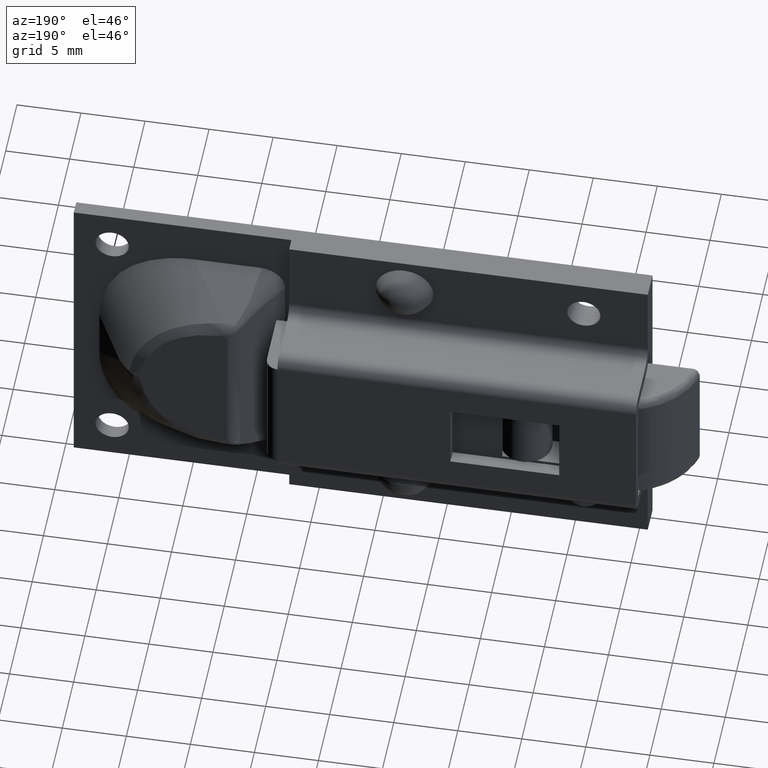
[diagram: clean part render]
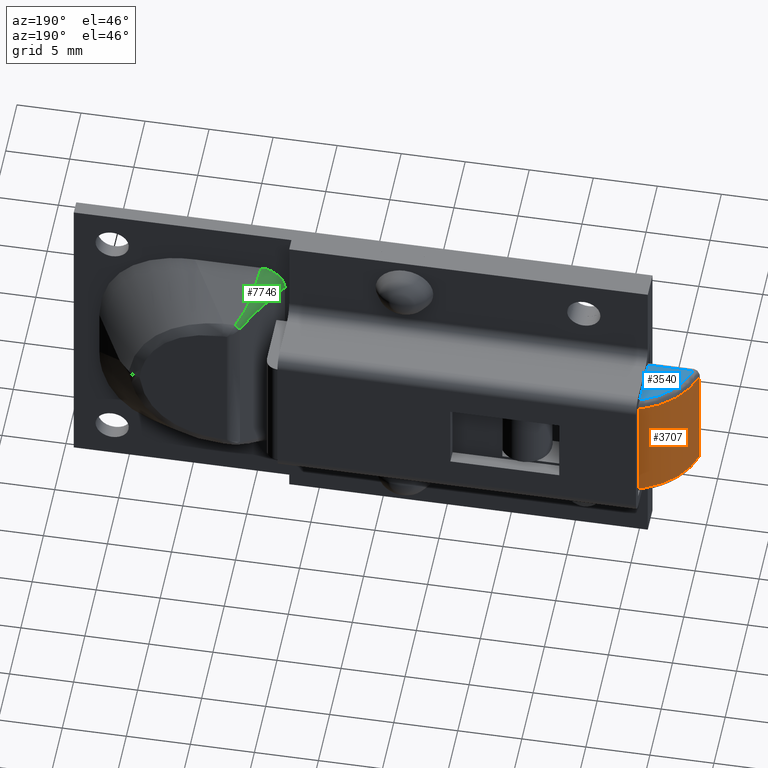
[diagram: same view with three faces highlighted in distinct colors, each labeled with its STEP entity id]
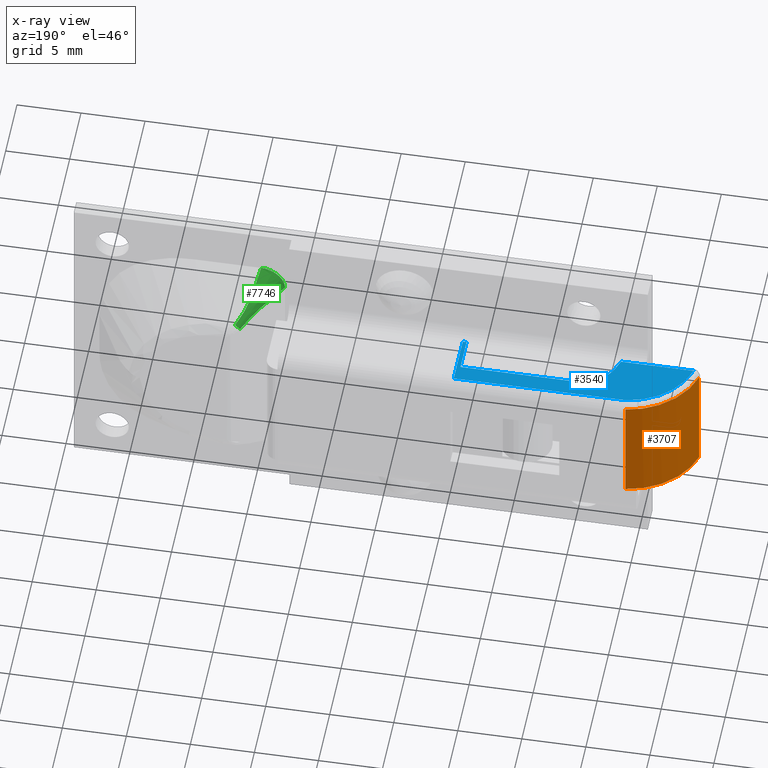
[diagram: x-ray of the same camera — body ghosted, the three highlighted faces saturated]
A machine part, auxiliary view with three faces highlighted in distinct colors.
The next image is the same camera in x-ray (body ghosted, the three faces saturated) — at least one of them is partly hidden behind the body in this view.
Their STEP definitions:

[orange] entity #3707 — the highlighted face is a freeform B-spline surface patch.
#2156=CARTESIAN_POINT('',(-9.800035537852411,6.099994000000000,4.400000000000071));
#2157=VERTEX_POINT('',#2156);
#2215=CARTESIAN_POINT('',(-14.782426649906419,1.731408727272845,4.400000000000000));
#2216=VERTEX_POINT('',#2215);
#2246=CARTESIAN_POINT('',(-14.782426649906419,1.731408727272845,4.400000000000000));
#2247=CARTESIAN_POINT('',(-13.737964009039684,5.565706747075051,4.400000000000001));
#2248=CARTESIAN_POINT('',(-9.800035537852411,6.099994000000000,4.400000000000071));
#2256=(BOUNDED_CURVE()B_SPLINE_CURVE(2,(#2246,#2247,#2248),.UNSPECIFIED.,.F.,.U.)CURVE()GEOMETRIC_REPRESENTATION_ITEM()QUASI_UNIFORM_CURVE()RATIONAL_B_SPLINE_CURVE((1.0,0.833713419659948,1.0))REPRESENTATION_ITEM(''));
#2257=EDGE_CURVE('',#2216,#2157,#2256,.T.);
#2877=CARTESIAN_POINT('',(-14.782426649906419,1.731408727272845,-4.400000000000000));
#2878=VERTEX_POINT('',#2877);
#2973=CARTESIAN_POINT('',(-9.800035537852411,6.099994000000000,-4.400000000000071));
#2974=VERTEX_POINT('',#2973);
#3016=CARTESIAN_POINT('',(-9.800035537852411,6.099994000000000,-4.400000000000071));
#3017=CARTESIAN_POINT('',(-13.737964009039681,5.565706747075052,-4.400000000000000));
#3018=CARTESIAN_POINT('',(-14.782426649906419,1.731408727272845,-4.400000000000000));
#3026=(BOUNDED_CURVE()B_SPLINE_CURVE(2,(#3016,#3017,#3018),.UNSPECIFIED.,.F.,.U.)CURVE()GEOMETRIC_REPRESENTATION_ITEM()QUASI_UNIFORM_CURVE()RATIONAL_B_SPLINE_CURVE((1.0,0.833713419659947,1.0))REPRESENTATION_ITEM(''));
#3027=EDGE_CURVE('',#2974,#2878,#3026,.T.);
#3165=CARTESIAN_POINT('',(-14.782426649906419,1.731408727272845,-4.400000000000000));
#3166=CARTESIAN_POINT('',(-14.782426649906419,1.731408727272845,4.400000000000000));
#3167=QUASI_UNIFORM_CURVE('',1,(#3165,#3166),.UNSPECIFIED.,.F.,.U.);
#3168=EDGE_CURVE('',#2878,#2216,#3167,.T.);
#3672=CARTESIAN_POINT('',(-9.800035537852411,6.099994000000000,-4.400000000000071));
#3673=CARTESIAN_POINT('',(-9.800035537852411,6.099994000000000,4.400000000000071));
#3674=QUASI_UNIFORM_CURVE('',1,(#3672,#3673),.UNSPECIFIED.,.F.,.U.);
#3675=EDGE_CURVE('',#2974,#2157,#3674,.T.);
#3687=CARTESIAN_POINT('',(-14.844874531668390,1.481047358633379,-4.620000000000074));
#3688=CARTESIAN_POINT('',(-14.844874531668390,1.481047358633379,4.625500000000074));
#3689=CARTESIAN_POINT('',(-13.869489104044755,5.783450407811901,-4.620000000000074));
#3690=CARTESIAN_POINT('',(-13.869489104044755,5.783450407811901,4.625500000000074));
#3691=CARTESIAN_POINT('',(-9.471965258399941,6.135349195798488,-4.620000000000073));
#3692=CARTESIAN_POINT('',(-9.471965258399941,6.135349195798488,4.625500000000075));
#3700=(BOUNDED_SURFACE()B_SPLINE_SURFACE(1,2,((#3687,#3689,#3691),(#3688,#3690,#3692)),.UNSPECIFIED.,.F.,.F.,.U.)B_SPLINE_SURFACE_WITH_KNOTS((2,2),(3,3),(0.0,9.245500000000149),(0.0,7.873523508983878),.UNSPECIFIED.)GEOMETRIC_REPRESENTATION_ITEM()RATIONAL_B_SPLINE_SURFACE(((1.0,0.802558081884726,0.992307679395612),(1.0,0.802558081884726,0.992307679395612)))REPRESENTATION_ITEM('')SURFACE());
#3701=ORIENTED_EDGE('',*,*,#3675,.F.);
#3702=ORIENTED_EDGE('',*,*,#3027,.T.);
#3703=ORIENTED_EDGE('',*,*,#3168,.T.);
#3704=ORIENTED_EDGE('',*,*,#2257,.T.);
#3705=EDGE_LOOP('',(#3701,#3702,#3703,#3704));
#3706=FACE_OUTER_BOUND('',#3705,.T.);
#3707=ADVANCED_FACE('',(#3706),#3700,.T.);

[blue] entity #3540 — the highlighted face is a freeform B-spline surface patch.
#2139=CARTESIAN_POINT('',(3.699996999999860,5.599994000000000,4.900000000000000));
#2140=VERTEX_POINT('',#2139);
#2163=CARTESIAN_POINT('',(-9.765533048192269,5.599994000000000,4.900000000000000));
#2164=VERTEX_POINT('',#2163);
#2190=CARTESIAN_POINT('',(3.699996999999860,5.599994000000000,4.900000000000000));
#2191=CARTESIAN_POINT('',(-9.765533048192269,5.599994000000000,4.900000000000000));
#2192=QUASI_UNIFORM_CURVE('',1,(#2190,#2191),.UNSPECIFIED.,.F.,.U.);
#2193=EDGE_CURVE('',#2140,#2164,#2192,.T.);
#2217=CARTESIAN_POINT('',(-14.300004679080899,1.599997000000115,4.900000000000000));
#2218=VERTEX_POINT('',#2217);
#2232=CARTESIAN_POINT('',(-9.765533048192269,5.599994000000007,4.900000000000000));
#2233=CARTESIAN_POINT('',(-13.348813570879514,5.091888466413374,4.900000000000000));
#2234=CARTESIAN_POINT('',(-14.300004679080940,1.599997000000128,4.900000000000000));
#2242=(BOUNDED_CURVE()B_SPLINE_CURVE(2,(#2232,#2233,#2234),.UNSPECIFIED.,.F.,.U.)CURVE()GEOMETRIC_REPRESENTATION_ITEM()QUASI_UNIFORM_CURVE()RATIONAL_B_SPLINE_CURVE((1.0,0.835367940058848,1.0))REPRESENTATION_ITEM(''));
#2243=EDGE_CURVE('',#2164,#2218,#2242,.T.);
#2276=CARTESIAN_POINT('',(3.699996999999860,1.599997000000115,4.900000000000000));
#2277=VERTEX_POINT('',#2276);
#2299=CARTESIAN_POINT('',(3.699996999999860,1.599997000000115,4.900000000000000));
#2300=CARTESIAN_POINT('',(3.699996999999860,5.599994000000000,4.900000000000000));
#2301=QUASI_UNIFORM_CURVE('',1,(#2299,#2300),.UNSPECIFIED.,.F.,.U.);
#2302=EDGE_CURVE('',#2277,#2140,#2301,.T.);
#2379=CARTESIAN_POINT('',(3.399996999999860,1.599997000000115,4.900000000000000));
#2380=VERTEX_POINT('',#2379);
#2402=CARTESIAN_POINT('',(3.399996999999860,1.599997000000115,4.900000000000000));
#2403=CARTESIAN_POINT('',(3.699996999999860,1.599997000000115,4.900000000000000));
#2404=QUASI_UNIFORM_CURVE('',1,(#2402,#2403),.UNSPECIFIED.,.F.,.U.);
#2405=EDGE_CURVE('',#2380,#2277,#2404,.T.);
#2426=CARTESIAN_POINT('',(-8.648009576877920,1.599997000000115,4.900000000000000));
#2427=VERTEX_POINT('',#2426);
#2441=CARTESIAN_POINT('',(-14.300004679080899,1.599997000000115,4.900000000000000));
#2442=CARTESIAN_POINT('',(-8.648009576877920,1.599997000000115,4.900000000000000));
#2443=QUASI_UNIFORM_CURVE('',1,(#2441,#2442),.UNSPECIFIED.,.F.,.U.);
#2444=EDGE_CURVE('',#2218,#2427,#2443,.T.);
#2469=CARTESIAN_POINT('',(3.399996999999860,4.299994000000000,4.900000000000000));
#2470=VERTEX_POINT('',#2469);
#2492=CARTESIAN_POINT('',(3.399996999999860,4.299994000000000,4.900000000000000));
#2493=CARTESIAN_POINT('',(3.399996999999860,1.599997000000115,4.900000000000000));
#2494=QUASI_UNIFORM_CURVE('',1,(#2492,#2493),.UNSPECIFIED.,.F.,.U.);
#2495=EDGE_CURVE('',#2470,#2380,#2494,.T.);
#2516=CARTESIAN_POINT('',(-8.373216263781700,2.341938105120230,4.900000000000000));
#2517=VERTEX_POINT('',#2516);
#2531=CARTESIAN_POINT('',(-8.648009576877920,1.599997000000115,4.900000000000000));
#2532=CARTESIAN_POINT('',(-8.373216263781700,2.341938105120230,4.900000000000000));
#2533=QUASI_UNIFORM_CURVE('',1,(#2531,#2532),.UNSPECIFIED.,.F.,.U.);
#2534=EDGE_CURVE('',#2427,#2517,#2533,.T.);
#2559=CARTESIAN_POINT('',(-5.559970365925421,4.299994000000000,4.900000000000000));
#2560=VERTEX_POINT('',#2559);
#2582=CARTESIAN_POINT('',(-5.559970365925421,4.299994000000000,4.900000000000000));
#2583=CARTESIAN_POINT('',(3.399996999999860,4.299994000000000,4.900000000000000));
#2584=QUASI_UNIFORM_CURVE('',1,(#2582,#2583),.UNSPECIFIED.,.F.,.U.);
#2585=EDGE_CURVE('',#2560,#2470,#2584,.T.);
#2622=CARTESIAN_POINT('',(-8.373216263781707,2.341938105120233,4.900000000000000));
#2623=CARTESIAN_POINT('',(-7.648009555501951,4.299994000000011,4.900000000000000));
#2624=CARTESIAN_POINT('',(-5.559970365925421,4.299994000000011,4.900000000000000));
#2632=(BOUNDED_CURVE()B_SPLINE_CURVE(2,(#2622,#2623,#2624),.UNSPECIFIED.,.F.,.U.)CURVE()GEOMETRIC_REPRESENTATION_ITEM()QUASI_UNIFORM_CURVE()RATIONAL_B_SPLINE_CURVE((1.0,0.820766319273257,1.0))REPRESENTATION_ITEM(''));
#2633=EDGE_CURVE('',#2517,#2560,#2632,.T.);
#3524=CARTESIAN_POINT('',(-15.199105066005760,5.799794030142774,4.900000000000000));
#3525=CARTESIAN_POINT('',(4.599097547857276,5.799794030142775,4.900000000000000));
#3526=CARTESIAN_POINT('',(-15.199105066005760,1.400197041382861,4.900000000000000));
#3527=CARTESIAN_POINT('',(4.599097547857276,1.400197041382861,4.900000000000000));
#3528=B_SPLINE_SURFACE_WITH_KNOTS('',1,1,((#3524,#3526),(#3525,#3527)),.UNSPECIFIED.,.F.,.F.,.U.,(2,2),(2,2),(0.0,19.798202613863040),(0.0,4.399596988759914),.UNSPECIFIED.);
#3529=ORIENTED_EDGE('',*,*,#2302,.T.);
#3530=ORIENTED_EDGE('',*,*,#2193,.T.);
#3531=ORIENTED_EDGE('',*,*,#2243,.T.);
#3532=ORIENTED_EDGE('',*,*,#2444,.T.);
#3533=ORIENTED_EDGE('',*,*,#2534,.T.);
#3534=ORIENTED_EDGE('',*,*,#2633,.T.);
#3535=ORIENTED_EDGE('',*,*,#2585,.T.);
#3536=ORIENTED_EDGE('',*,*,#2495,.T.);
#3537=ORIENTED_EDGE('',*,*,#2405,.T.);
#3538=EDGE_LOOP('',(#3529,#3530,#3531,#3532,#3533,#3534,#3535,#3536,#3537));
#3539=FACE_OUTER_BOUND('',#3538,.T.);
#3540=ADVANCED_FACE('',(#3539),#3528,.F.);

[green] entity #7746 — the highlighted face is a freeform B-spline surface patch.
#7635=CARTESIAN_POINT('',(20.984659909078740,4.759369478155124,6.611038646703922));
#7636=CARTESIAN_POINT('',(20.983483371739371,4.759941684103886,6.610586907810999));
#7637=CARTESIAN_POINT('',(20.698739346958249,4.898426217828446,6.501257653041830));
#7638=CARTESIAN_POINT('',(20.589410042433066,4.759941621079193,6.216513498672958));
#7639=CARTESIAN_POINT('',(20.588958253951091,4.759369352317275,6.215336832180736));
#7640=CARTESIAN_POINT('',(20.076286955209348,3.618887554041667,7.511413840146288));
#7641=CARTESIAN_POINT('',(20.075134197777061,3.619448194692974,7.510971231697880));
#7642=CARTESIAN_POINT('',(19.796145304300094,3.755133734915272,7.403851695700022));
#7643=CARTESIAN_POINT('',(19.689025719551807,3.619448132942125,7.124862675254433));
#7644=CARTESIAN_POINT('',(19.688583062516638,3.618887430747226,7.123709791279700));
#7645=CARTESIAN_POINT('',(19.758558974335745,2.191146946466977,8.638570876615633));
#7646=CARTESIAN_POINT('',(19.754999545571415,2.192878065612092,8.637204211610083));
#7647=CARTESIAN_POINT('',(18.893551261641878,2.611841252002100,8.306445738358207));
#7648=CARTESIAN_POINT('',(18.562792637860909,2.192877874940801,7.444997062381212));
#7649=CARTESIAN_POINT('',(18.561425822831485,2.191146565764349,7.441437242885240));
#7650=CARTESIAN_POINT('',(19.498144188105339,0.735532212147977,9.787733673745283));
#7651=CARTESIAN_POINT('',(19.491942249589833,0.738548509203447,9.785352400541937));
#7652=CARTESIAN_POINT('',(17.990957218983695,1.468548769088925,9.209039781016395));
#7653=CARTESIAN_POINT('',(17.414644337176693,0.738548176978336,7.708054067307860));
#7654=CARTESIAN_POINT('',(17.412262802572194,0.735531548812809,7.701851447982667));
#7662=(BOUNDED_SURFACE()B_SPLINE_SURFACE(2,3,((#7635,#7640,#7645,#7650),(#7636,#7641,#7646,#7651),(#7637,#7642,#7647,#7652),(#7638,#7643,#7648,#7653),(#7639,#7644,#7649,#7654)),.UNSPECIFIED.,.F.,.F.,.U.)B_SPLINE_SURFACE_WITH_KNOTS((3,1,1,3),(4,4),(0.0,0.015971764194030,3.210097962035470,3.226071483936901),(0.0,5.618260989514950),.UNSPECIFIED.)GEOMETRIC_REPRESENTATION_ITEM()RATIONAL_B_SPLINE_SURFACE(((1.001681596983765,1.001681596983765,1.001681596983765,1.001681596983765),(1.000840798491882,1.000840798491882,1.000840798491882,1.000840798491882),(0.831852232639976,0.831852232639976,0.831852232639976,0.831852232639976),(1.000840891022533,1.000840891022533,1.000840891022533,1.000840891022533),(1.001681782045066,1.001681782045066,1.001681782045066,1.001681782045066)))REPRESENTATION_ITEM('')SURFACE());
#7663=CARTESIAN_POINT('',(20.968930153773599,4.743573463648680,6.623509111440060));
#7664=VERTEX_POINT('',#7663);
#7665=CARTESIAN_POINT('',(20.576487888560049,4.743573463648680,6.231066846226510));
#7666=VERTEX_POINT('',#7665);
#7667=CARTESIAN_POINT('',(20.968930153773599,4.743573463648676,6.623509111440061));
#7668=CARTESIAN_POINT('',(20.685364644793530,4.881484829204680,6.514632355206586));
#7669=CARTESIAN_POINT('',(20.576487888560049,4.743573463648677,6.231066846226512));
#7677=(BOUNDED_CURVE()B_SPLINE_CURVE(2,(#7667,#7668,#7669),.UNSPECIFIED.,.F.,.U.)CURVE()GEOMETRIC_REPRESENTATION_ITEM()QUASI_UNIFORM_CURVE()RATIONAL_B_SPLINE_CURVE((1.0,0.831852232639977,1.0))REPRESENTATION_ITEM(''));
#7678=EDGE_CURVE('',#7664,#7666,#7677,.T.);
#7679=ORIENTED_EDGE('',*,*,#7678,.T.);
#7680=CARTESIAN_POINT('',(19.220233590567979,3.025641292008813,7.152647556771698));
#7681=VERTEX_POINT('',#7680);
#7682=CARTESIAN_POINT('',(19.220233590567979,3.025641292008813,7.152647556771698));
#7683=CARTESIAN_POINT('',(19.706082406484452,3.641053396251920,6.933391213338473));
#7684=CARTESIAN_POINT('',(20.164600840304960,4.221846813766889,6.642953894481581));
#7685=CARTESIAN_POINT('',(20.576487888560049,4.743573463648680,6.231066846226510));
#7686=B_SPLINE_CURVE_WITH_KNOTS('',3,(#7682,#7683,#7684,#7685),.UNSPECIFIED.,.F.,.U.,(4,4),(0.137968618027137,0.275937236054274),.UNSPECIFIED.);
#7687=EDGE_CURVE('',#7681,#7666,#7686,.T.);
#7688=ORIENTED_EDGE('',*,*,#7687,.F.);
#7689=CARTESIAN_POINT('',(17.699997000000099,1.099997000000114,7.647142414774870));
#7690=VERTEX_POINT('',#7689);
#7691=CARTESIAN_POINT('',(17.699997000000110,1.099997000000113,7.647142414774875));
#7692=CARTESIAN_POINT('',(18.221205576639061,1.760198396794460,7.519979268214478));
#7693=CARTESIAN_POINT('',(18.734384774651499,2.410229187765705,7.371903900204922));
#7694=CARTESIAN_POINT('',(19.220233590567979,3.025641292008813,7.152647556771698));
#7695=B_SPLINE_CURVE_WITH_KNOTS('',3,(#7691,#7692,#7693,#7694),.UNSPECIFIED.,.F.,.U.,(4,4),(0.0,0.137968618027137),.UNSPECIFIED.);
#7696=EDGE_CURVE('',#7690,#7681,#7695,.T.);
#7697=ORIENTED_EDGE('',*,*,#7696,.F.);
#7698=CARTESIAN_POINT('',(19.552854585225202,1.099997000000114,9.500000000000000));
#7699=VERTEX_POINT('',#7698);
#7700=CARTESIAN_POINT('',(19.552854585225202,1.099997000000114,9.500000000000000));
#7701=CARTESIAN_POINT('',(19.431224664502899,1.099997000000115,9.499999999999996));
#7702=CARTESIAN_POINT('',(19.311854130394341,1.099997000000115,9.486328187107318));
#7703=CARTESIAN_POINT('',(19.135800091781370,1.099997000000115,9.447656451180622));
#7704=CARTESIAN_POINT('',(19.077621156934960,1.099997000000115,9.431705552207102));
#7705=CARTESIAN_POINT('',(18.962267399798669,1.099997000000114,9.393727751635156));
#7706=CARTESIAN_POINT('',(18.905899485896700,1.099997000000112,9.371962896531427));
#7707=CARTESIAN_POINT('',(18.740889665821278,1.099997000000111,9.299005220911109));
#7708=CARTESIAN_POINT('',(18.636110543454159,1.099997000000114,9.240166222324683));
#7709=CARTESIAN_POINT('',(18.486572896772980,1.099997000000114,9.137016880697326));
#7710=CARTESIAN_POINT('',(18.438259106513652,1.099997000000114,9.100272890772358));
#7711=CARTESIAN_POINT('',(18.345884393832819,1.099997000000114,9.023189557423255));
#7712=CARTESIAN_POINT('',(18.257359172973089,1.099997000000114,8.942237940339370));
#7713=CARTESIAN_POINT('',(18.176413562287301,1.099997000000114,8.853669711995014));
#7714=CARTESIAN_POINT('',(18.099322920883310,1.099997000000114,8.761227695716038));
#7715=CARTESIAN_POINT('',(18.062538988841471,1.099997000000113,8.712820537279109));
#7716=CARTESIAN_POINT('',(17.959576133030719,1.099997000000113,8.563444795309099));
#7717=CARTESIAN_POINT('',(17.900974706284071,1.099997000000115,8.458986044728674));
#7718=CARTESIAN_POINT('',(17.828359923229389,1.099997000000115,8.294875494453912));
#7719=CARTESIAN_POINT('',(17.806722748691740,1.099997000000111,8.238925264248550));
#7720=CARTESIAN_POINT('',(17.768893430907589,1.099997000000111,8.124381094204837));
#7721=CARTESIAN_POINT('',(17.752676648905791,1.099997000000114,8.065555298410310));
#7722=CARTESIAN_POINT('',(17.713675712359692,1.099997000000114,7.888513254761309));
#7723=CARTESIAN_POINT('',(17.699997000000110,1.099997000000115,7.768776354597645));
#7724=CARTESIAN_POINT('',(17.699997000000099,1.099997000000114,7.647142414774870));
#7725=B_SPLINE_CURVE_WITH_KNOTS('',3,(#7700,#7701,#7702,#7703,#7704,#7705,#7706,#7707,#7708,#7709,#7710,#7711,#7712,#7713,#7714,#7715,#7716,#7717,#7718,#7719,#7720,#7721,#7722,#7723,#7724),.UNSPECIFIED.,.F.,.U.,(4,2,2,2,2,2,1,2,2,2,2,2,4),(0.0,0.125000000000003,0.187500000000004,0.250000000000006,0.375000000000005,0.437500000000005,0.500000000000004,0.562500000000003,0.625000000000002,0.750000000000003,0.812500000000003,0.875000000000002,1.0),.UNSPECIFIED.);
#7726=EDGE_CURVE('',#7699,#7690,#7725,.T.);
#7727=ORIENTED_EDGE('',*,*,#7726,.F.);
#7728=CARTESIAN_POINT('',(20.047349443228381,3.025641292008805,7.979763409432107));
#7729=VERTEX_POINT('',#7728);
#7730=CARTESIAN_POINT('',(20.047349443228381,3.025641292008805,7.979763409432107));
#7731=CARTESIAN_POINT('',(19.828093099795161,2.410229187765695,8.465612225348579));
#7732=CARTESIAN_POINT('',(19.680017731785600,1.760198396794446,8.978791423361024));
#7733=CARTESIAN_POINT('',(19.552854585225202,1.099997000000097,9.499999999999977));
#7734=B_SPLINE_CURVE_WITH_KNOTS('',3,(#7730,#7731,#7732,#7733),.UNSPECIFIED.,.F.,.U.,(4,4),(0.137968618027137,0.275937236054275),.UNSPECIFIED.);
#7735=EDGE_CURVE('',#7729,#7699,#7734,.T.);
#7736=ORIENTED_EDGE('',*,*,#7735,.F.);
#7737=CARTESIAN_POINT('',(20.968930153773599,4.743573463648680,6.623509111440060));
#7738=CARTESIAN_POINT('',(20.557043105518510,4.221846813766887,7.035396159695132));
#7739=CARTESIAN_POINT('',(20.266605786661611,3.641053396251916,7.493914593515633));
#7740=CARTESIAN_POINT('',(20.047349443228381,3.025641292008805,7.979763409432107));
#7741=B_SPLINE_CURVE_WITH_KNOTS('',3,(#7737,#7738,#7739,#7740),.UNSPECIFIED.,.F.,.U.,(4,4),(0.0,0.137968618027137),.UNSPECIFIED.);
#7742=EDGE_CURVE('',#7664,#7729,#7741,.T.);
#7743=ORIENTED_EDGE('',*,*,#7742,.F.);
#7744=EDGE_LOOP('',(#7679,#7688,#7697,#7727,#7736,#7743));
#7745=FACE_OUTER_BOUND('',#7744,.T.);
#7746=ADVANCED_FACE('',(#7745),#7662,.T.);